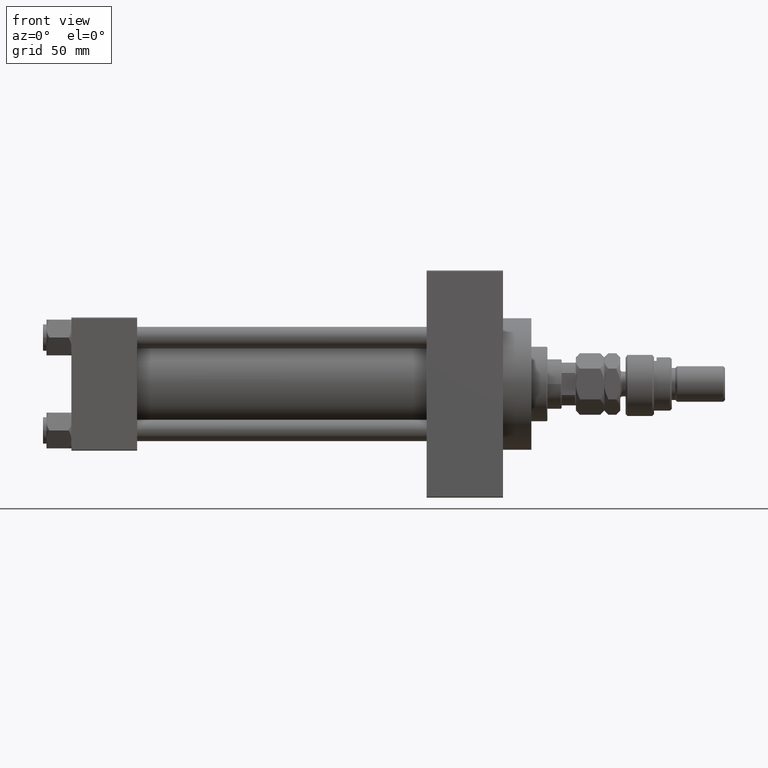
[diagram: clean part render]
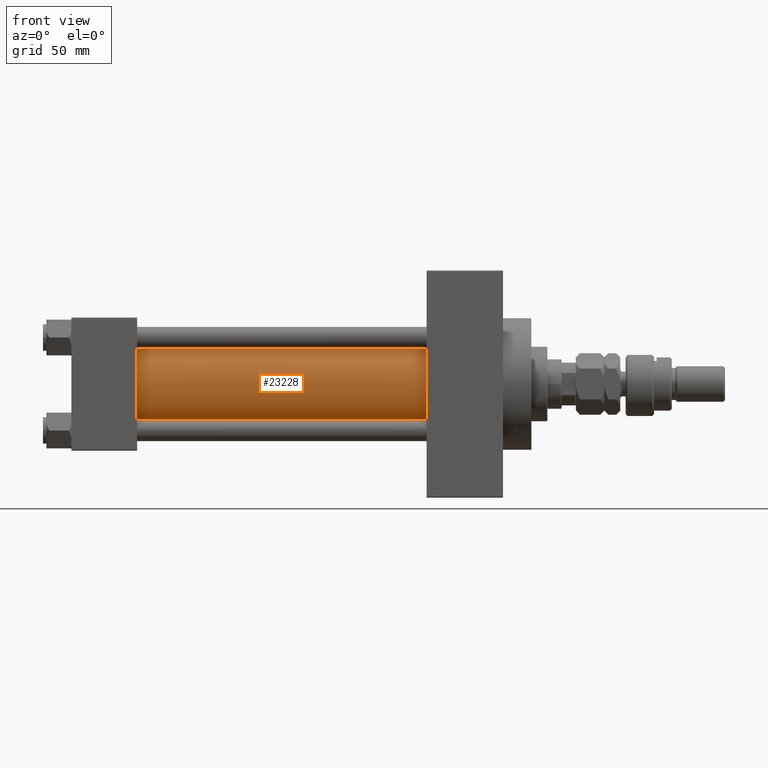
[diagram: same view with one face highlighted and labeled with its STEP entity id]
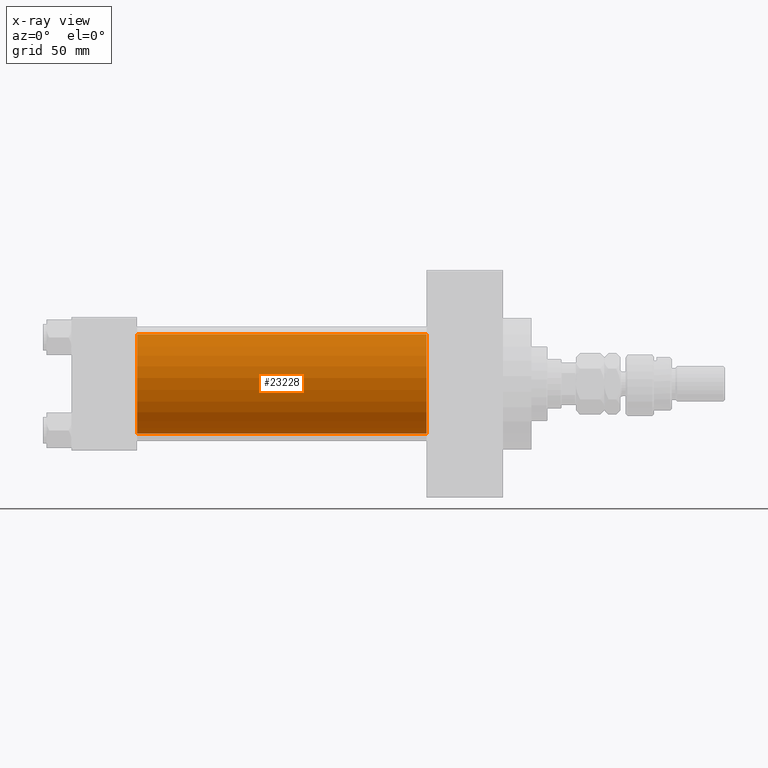
[diagram: x-ray of the same camera — body ghosted, the highlighted face saturated]
A machine part, front view. The second image highlights one B-rep face of the part: STEP entity #23228.
The next image is the same camera in x-ray: the body ghosted, the highlighted face saturated — about 0% of this face is hidden behind the body in this view.
In plain terms, the highlighted cylindrical surface (partial cylindrical patch) has radius 28 mm, axis along (-1, -0, -0).
Its self-contained STEP definition (entity closure, byte-faithful):
#345 = CARTESIAN_POINT ( 'NONE',  ( 200.0000000000000000, 8.269258236473784371E-16, -28.00000000000000000 ) ) ;
#3852 = EDGE_CURVE ( 'NONE', #41932, #23324, #31510, .T. ) ;
#4004 = DIRECTION ( 'NONE',  ( -1.000000000000000000, -0.000000000000000000, -0.000000000000000000 ) ) ;
#5298 = EDGE_CURVE ( 'NONE', #21474, #25930, #38837, .T. ) ;
#5537 = AXIS2_PLACEMENT_3D ( 'NONE', #8498, #46884, #12070 ) ;
#5751 = VECTOR ( 'NONE', #47291, 1000.000000000000000 ) ;
#6098 = AXIS2_PLACEMENT_3D ( 'NONE', #30589, #14325, #41528 ) ;
#6551 = ORIENTED_EDGE ( 'NONE', *, *, #36137, .F. ) ;
#7094 = VECTOR ( 'NONE', #4004, 1000.000000000000000 ) ;
#7242 = CARTESIAN_POINT ( 'NONE',  ( 37.00000000000000711, -2.602085213965210642E-15, 28.00000000000000000 ) ) ;
#8498 = CARTESIAN_POINT ( 'NONE',  ( 200.0000000000000000, -2.602085213965210642E-15, 0.000000000000000000 ) ) ;
#9151 = CARTESIAN_POINT ( 'NONE',  ( 200.0000000000000000, -2.602085213965210642E-15, 28.00000000000000000 ) ) ;
#9679 = CARTESIAN_POINT ( 'NONE',  ( 37.00000000000000711, 8.269258236473784371E-16, -28.00000000000000000 ) ) ;
#12070 = DIRECTION ( 'NONE',  ( 0.000000000000000000, 0.000000000000000000, -1.000000000000000000 ) ) ;
#14325 = DIRECTION ( 'NONE',  ( -1.000000000000000000, -0.000000000000000000, -0.000000000000000000 ) ) ;
#14830 = FACE_OUTER_BOUND ( 'NONE', #24549, .T. ) ;
#16007 = DIRECTION ( 'NONE',  ( 0.000000000000000000, 0.000000000000000000, 1.000000000000000000 ) ) ;
#16903 = AXIS2_PLACEMENT_3D ( 'NONE', #38639, #39146, #16007 ) ;
#21474 = VERTEX_POINT ( 'NONE', #7242 ) ;
#23058 = CARTESIAN_POINT ( 'NONE',  ( 200.0000000000000000, 8.269258236473784371E-16, -28.00000000000000000 ) ) ;
#23228 = ADVANCED_FACE ( 'NONE', ( #14830 ), #30340, .T. ) ;
#23324 = VERTEX_POINT ( 'NONE', #345 ) ;
#23864 = ORIENTED_EDGE ( 'NONE', *, *, #3852, .F. ) ;
#24549 = EDGE_LOOP ( 'NONE', ( #6551, #23864, #40359, #24924 ) ) ;
#24924 = ORIENTED_EDGE ( 'NONE', *, *, #5298, .T. ) ;
#25930 = VERTEX_POINT ( 'NONE', #9679 ) ;
#28464 = LINE ( 'NONE', #9151, #5751 ) ;
#30340 = CYLINDRICAL_SURFACE ( 'NONE', #6098, 28.00000000000000000 ) ;
#30589 = CARTESIAN_POINT ( 'NONE',  ( 200.0000000000000000, -2.602085213965210642E-15, 0.000000000000000000 ) ) ;
#31510 = CIRCLE ( 'NONE', #5537, 28.00000000000000000 ) ;
#36137 = EDGE_CURVE ( 'NONE', #23324, #25930, #49750, .T. ) ;
#38639 = CARTESIAN_POINT ( 'NONE',  ( 37.00000000000000711, -2.602085213965210642E-15, 0.000000000000000000 ) ) ;
#38837 = CIRCLE ( 'NONE', #16903, 28.00000000000000000 ) ;
#39146 = DIRECTION ( 'NONE',  ( 1.000000000000000000, -0.000000000000000000, 0.000000000000000000 ) ) ;
#40359 = ORIENTED_EDGE ( 'NONE', *, *, #46623, .T. ) ;
#41528 = DIRECTION ( 'NONE',  ( 0.000000000000000000, 0.000000000000000000, 1.000000000000000000 ) ) ;
#41932 = VERTEX_POINT ( 'NONE', #46207 ) ;
#46207 = CARTESIAN_POINT ( 'NONE',  ( 200.0000000000000000, -2.602085213965210642E-15, 28.00000000000000000 ) ) ;
#46623 = EDGE_CURVE ( 'NONE', #41932, #21474, #28464, .T. ) ;
#46884 = DIRECTION ( 'NONE',  ( 1.000000000000000000, 0.000000000000000000, 0.000000000000000000 ) ) ;
#47291 = DIRECTION ( 'NONE',  ( -1.000000000000000000, -0.000000000000000000, -0.000000000000000000 ) ) ;
#49750 = LINE ( 'NONE', #23058, #7094 ) ;